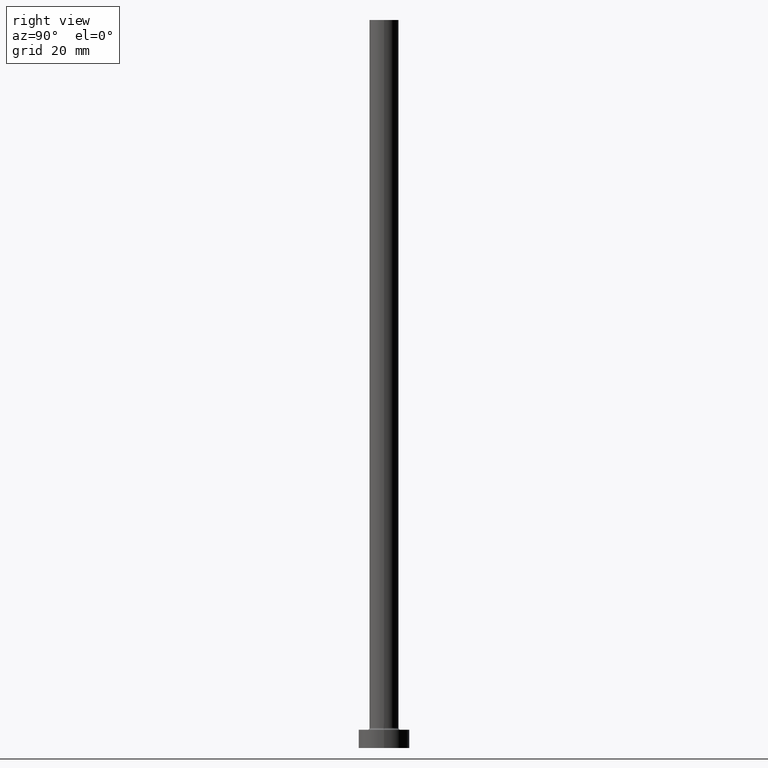
[diagram: clean part render]
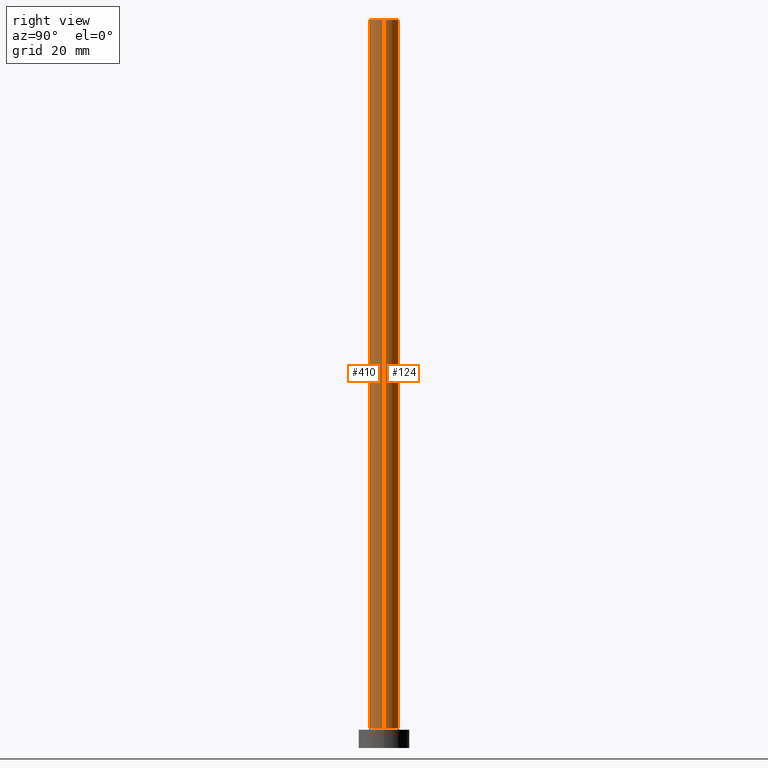
[diagram: same view with one multi-face feature highlighted, each face labeled with its STEP entity id]
A machine part, right view. The highlighted faces form ONE feature: a constant-radius fillet chain: 2 tangent blend faces with common blend radius 4 mm. The faces share edges in the B-rep.
Their STEP definitions:
[1] entity #124 (Cylinder):
#2 = VERTEX_POINT ( 'NONE', #207 ) ;
#8 = CARTESIAN_POINT ( 'NONE',  ( 0.000000000000000000, 0.000000000000000000, 200.0000000000000000 ) ) ;
#22 = AXIS2_PLACEMENT_3D ( 'NONE', #241, #387, #424 ) ;
#29 = VECTOR ( 'NONE', #297, 1000.000000000000000 ) ;
#45 = AXIS2_PLACEMENT_3D ( 'NONE', #8, #83, #375 ) ;
#49 = DIRECTION ( 'NONE',  ( -1.000000000000000000, 0.000000000000000000, 0.000000000000000000 ) ) ;
#51 = EDGE_CURVE ( 'NONE', #338, #413, #317, .T. ) ;
#62 = EDGE_CURVE ( 'NONE', #338, #152, #262, .T. ) ;
#83 = DIRECTION ( 'NONE',  ( 0.000000000000000000, 0.000000000000000000, 1.000000000000000000 ) ) ;
#90 = CARTESIAN_POINT ( 'NONE',  ( -4.000000000000000000, 0.000000000000000000, 200.0000000000000000 ) ) ;
#124 = ADVANCED_FACE ( 'NONE', ( #438 ), #189, .T. ) ;
#148 = CIRCLE ( 'NONE', #22, 4.000000000000000000 ) ;
#152 = VERTEX_POINT ( 'NONE', #234 ) ;
#158 = CARTESIAN_POINT ( 'NONE',  ( 4.000000000000000000, 4.898587196589412829E-16, 200.0000000000000000 ) ) ;
#167 = LINE ( 'NONE', #90, #201 ) ;
#189 = CYLINDRICAL_SURFACE ( 'NONE', #271, 4.000000000000000000 ) ;
#201 = VECTOR ( 'NONE', #419, 1000.000000000000000 ) ;
#202 = ORIENTED_EDGE ( 'NONE', *, *, #62, .T. ) ;
#207 = CARTESIAN_POINT ( 'NONE',  ( -4.000000000000000000, 0.000000000000000000, 5.500000000000005329 ) ) ;
#227 = ORIENTED_EDGE ( 'NONE', *, *, #243, .F. ) ;
#234 = CARTESIAN_POINT ( 'NONE',  ( 4.000000000000000000, 4.898587196589412829E-16, 5.500000000000005329 ) ) ;
#241 = CARTESIAN_POINT ( 'NONE',  ( 0.000000000000000000, 0.000000000000000000, 5.500000000000005329 ) ) ;
#243 = EDGE_CURVE ( 'NONE', #413, #2, #167, .T. ) ;
#259 = CARTESIAN_POINT ( 'NONE',  ( 4.000000000000000000, 4.898587196589412829E-16, 200.0000000000000000 ) ) ;
#262 = LINE ( 'NONE', #259, #29 ) ;
#267 = CARTESIAN_POINT ( 'NONE',  ( -4.000000000000000000, 0.000000000000000000, 200.0000000000000000 ) ) ;
#271 = AXIS2_PLACEMENT_3D ( 'NONE', #299, #377, #49 ) ;
#297 = DIRECTION ( 'NONE',  ( -0.000000000000000000, -0.000000000000000000, -1.000000000000000000 ) ) ;
#299 = CARTESIAN_POINT ( 'NONE',  ( 0.000000000000000000, 0.000000000000000000, 200.0000000000000000 ) ) ;
#306 = ORIENTED_EDGE ( 'NONE', *, *, #307, .T. ) ;
#307 = EDGE_CURVE ( 'NONE', #152, #2, #148, .T. ) ;
#317 = CIRCLE ( 'NONE', #45, 4.000000000000000000 ) ;
#335 = EDGE_LOOP ( 'NONE', ( #395, #202, #306, #227 ) ) ;
#338 = VERTEX_POINT ( 'NONE', #158 ) ;
#375 = DIRECTION ( 'NONE',  ( 1.000000000000000000, 0.000000000000000000, 0.000000000000000000 ) ) ;
#377 = DIRECTION ( 'NONE',  ( -0.000000000000000000, -0.000000000000000000, -1.000000000000000000 ) ) ;
#387 = DIRECTION ( 'NONE',  ( 0.000000000000000000, 0.000000000000000000, 1.000000000000000000 ) ) ;
#395 = ORIENTED_EDGE ( 'NONE', *, *, #51, .F. ) ;
#413 = VERTEX_POINT ( 'NONE', #267 ) ;
#419 = DIRECTION ( 'NONE',  ( -0.000000000000000000, -0.000000000000000000, -1.000000000000000000 ) ) ;
#424 = DIRECTION ( 'NONE',  ( 1.000000000000000000, 0.000000000000000000, 0.000000000000000000 ) ) ;
#438 = FACE_OUTER_BOUND ( 'NONE', #335, .T. ) ;
[2] entity #410 (Cylinder):
#2 = VERTEX_POINT ( 'NONE', #207 ) ;
#15 = ORIENTED_EDGE ( 'NONE', *, *, #243, .T. ) ;
#29 = VECTOR ( 'NONE', #297, 1000.000000000000000 ) ;
#48 = CARTESIAN_POINT ( 'NONE',  ( 0.000000000000000000, 0.000000000000000000, 200.0000000000000000 ) ) ;
#52 = DIRECTION ( 'NONE',  ( 0.000000000000000000, 0.000000000000000000, 1.000000000000000000 ) ) ;
#57 = DIRECTION ( 'NONE',  ( -1.000000000000000000, 0.000000000000000000, 0.000000000000000000 ) ) ;
#62 = EDGE_CURVE ( 'NONE', #338, #152, #262, .T. ) ;
#82 = EDGE_CURVE ( 'NONE', #413, #338, #451, .T. ) ;
#90 = CARTESIAN_POINT ( 'NONE',  ( -4.000000000000000000, 0.000000000000000000, 200.0000000000000000 ) ) ;
#99 = AXIS2_PLACEMENT_3D ( 'NONE', #273, #445, #57 ) ;
#122 = ORIENTED_EDGE ( 'NONE', *, *, #82, .F. ) ;
#129 = CYLINDRICAL_SURFACE ( 'NONE', #99, 4.000000000000000000 ) ;
#152 = VERTEX_POINT ( 'NONE', #234 ) ;
#155 = AXIS2_PLACEMENT_3D ( 'NONE', #379, #52, #342 ) ;
#158 = CARTESIAN_POINT ( 'NONE',  ( 4.000000000000000000, 4.898587196589412829E-16, 200.0000000000000000 ) ) ;
#167 = LINE ( 'NONE', #90, #201 ) ;
#178 = EDGE_CURVE ( 'NONE', #2, #152, #327, .T. ) ;
#181 = ORIENTED_EDGE ( 'NONE', *, *, #62, .F. ) ;
#201 = VECTOR ( 'NONE', #419, 1000.000000000000000 ) ;
#207 = CARTESIAN_POINT ( 'NONE',  ( -4.000000000000000000, 0.000000000000000000, 5.500000000000005329 ) ) ;
#217 = AXIS2_PLACEMENT_3D ( 'NONE', #48, #371, #231 ) ;
#231 = DIRECTION ( 'NONE',  ( 1.000000000000000000, 0.000000000000000000, 0.000000000000000000 ) ) ;
#234 = CARTESIAN_POINT ( 'NONE',  ( 4.000000000000000000, 4.898587196589412829E-16, 5.500000000000005329 ) ) ;
#243 = EDGE_CURVE ( 'NONE', #413, #2, #167, .T. ) ;
#259 = CARTESIAN_POINT ( 'NONE',  ( 4.000000000000000000, 4.898587196589412829E-16, 200.0000000000000000 ) ) ;
#262 = LINE ( 'NONE', #259, #29 ) ;
#267 = CARTESIAN_POINT ( 'NONE',  ( -4.000000000000000000, 0.000000000000000000, 200.0000000000000000 ) ) ;
#273 = CARTESIAN_POINT ( 'NONE',  ( 0.000000000000000000, 0.000000000000000000, 200.0000000000000000 ) ) ;
#289 = ORIENTED_EDGE ( 'NONE', *, *, #178, .T. ) ;
#297 = DIRECTION ( 'NONE',  ( -0.000000000000000000, -0.000000000000000000, -1.000000000000000000 ) ) ;
#309 = FACE_OUTER_BOUND ( 'NONE', #421, .T. ) ;
#327 = CIRCLE ( 'NONE', #155, 4.000000000000000000 ) ;
#338 = VERTEX_POINT ( 'NONE', #158 ) ;
#342 = DIRECTION ( 'NONE',  ( 1.000000000000000000, 0.000000000000000000, 0.000000000000000000 ) ) ;
#371 = DIRECTION ( 'NONE',  ( 0.000000000000000000, 0.000000000000000000, 1.000000000000000000 ) ) ;
#379 = CARTESIAN_POINT ( 'NONE',  ( 0.000000000000000000, 0.000000000000000000, 5.500000000000005329 ) ) ;
#410 = ADVANCED_FACE ( 'NONE', ( #309 ), #129, .T. ) ;
#413 = VERTEX_POINT ( 'NONE', #267 ) ;
#419 = DIRECTION ( 'NONE',  ( -0.000000000000000000, -0.000000000000000000, -1.000000000000000000 ) ) ;
#421 = EDGE_LOOP ( 'NONE', ( #181, #122, #15, #289 ) ) ;
#445 = DIRECTION ( 'NONE',  ( -0.000000000000000000, -0.000000000000000000, -1.000000000000000000 ) ) ;
#451 = CIRCLE ( 'NONE', #217, 4.000000000000000000 ) ;